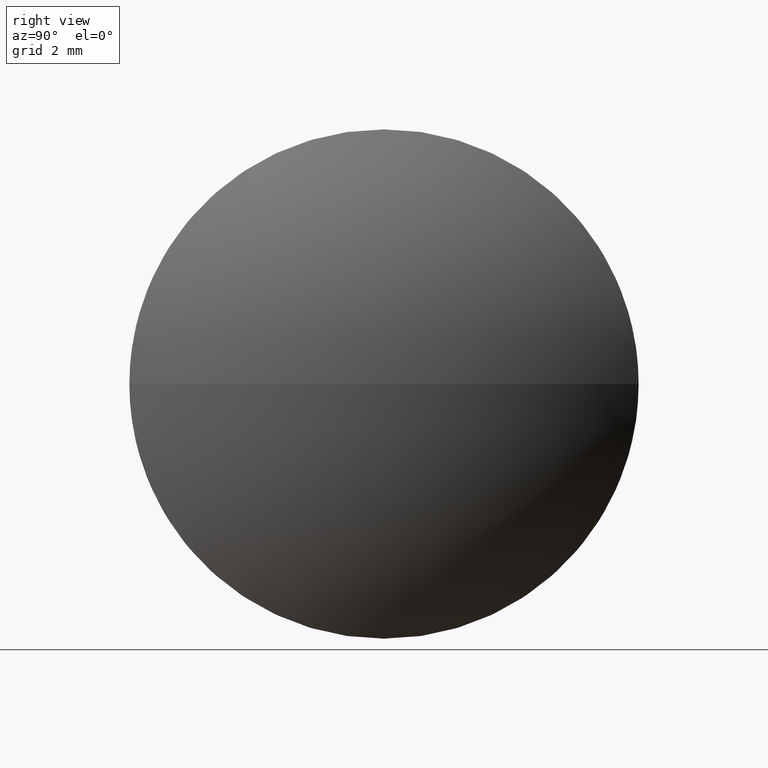
[diagram: clean part render]
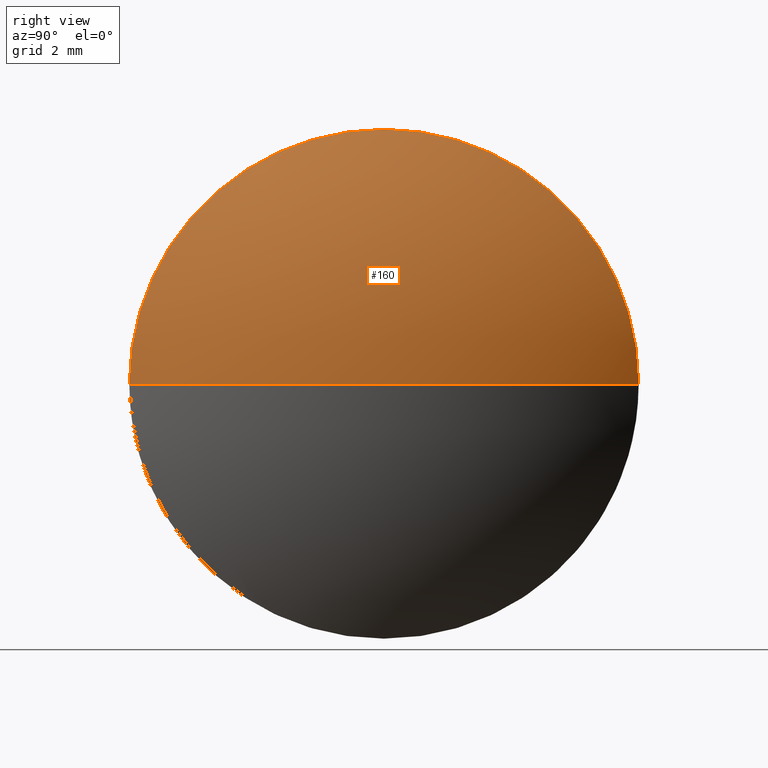
[diagram: same view with one face highlighted and labeled with its STEP entity id]
A machine part, right view. The second image highlights one B-rep face of the part: STEP entity #160.
In plain terms, the highlighted spherical surface has radius 10.5145 mm.
Its self-contained STEP definition (entity closure, byte-faithful):
#11 = EDGE_CURVE ( 'NONE', #169, #64, #174, .T. ) ;
#13 = DIRECTION ( 'NONE',  ( 0.0000000000000000000, 0.0000000000000000000, 1.000000000000000000 ) ) ;
#14 = CARTESIAN_POINT ( 'NONE',  ( 433.2311950534910400, 60.80641332261154000, 0.0000000000000000000 ) ) ;
#15 = DIRECTION ( 'NONE',  ( -0.0000000000000000000, 0.0000000000000000000, -1.000000000000000000 ) ) ;
#21 = AXIS2_PLACEMENT_3D ( 'NONE', #115, #166, #82 ) ;
#23 = ORIENTED_EDGE ( 'NONE', *, *, #137, .F. ) ;
#35 = EDGE_CURVE ( 'NONE', #139, #169, #66, .T. ) ;
#38 = CIRCLE ( 'NONE', #21, 10.51446808510642100 ) ;
#39 = CARTESIAN_POINT ( 'NONE',  ( 435.1111950534910300, 54.80641332261151900, 0.0000000000000000000 ) ) ;
#40 = VERTEX_POINT ( 'NONE', #39 ) ;
#47 = FACE_OUTER_BOUND ( 'NONE', #59, .T. ) ;
#50 = SPHERICAL_SURFACE ( 'NONE', #183, 10.51446808510642800 ) ;
#59 = EDGE_LOOP ( 'NONE', ( #23, #135, #181, #104 ) ) ;
#64 = VERTEX_POINT ( 'NONE', #14 ) ;
#66 = CIRCLE ( 'NONE', #158, 5.999999999999998200 ) ;
#77 = AXIS2_PLACEMENT_3D ( 'NONE', #126, #151, #96 ) ;
#82 = DIRECTION ( 'NONE',  ( 1.000000000000000000, 0.0000000000000000000, 0.0000000000000000000 ) ) ;
#83 = CARTESIAN_POINT ( 'NONE',  ( 433.2311950534910400, 54.80641332261154700, 0.0000000000000000000 ) ) ;
#85 = DIRECTION ( 'NONE',  ( 0.0000000000000000000, 1.000000000000000000, 0.0000000000000000000 ) ) ;
#96 = DIRECTION ( 'NONE',  ( 0.0000000000000000000, 0.0000000000000000000, 1.000000000000000000 ) ) ;
#97 = AXIS2_PLACEMENT_3D ( 'NONE', #103, #101, #168 ) ;
#101 = DIRECTION ( 'NONE',  ( 0.0000000000000000000, 1.224646799147353200E-016, -1.000000000000000000 ) ) ;
#103 = CARTESIAN_POINT ( 'NONE',  ( 424.5967269683846400, 54.80641332261151900, 0.0000000000000000000 ) ) ;
#104 = ORIENTED_EDGE ( 'NONE', *, *, #35, .F. ) ;
#106 = EDGE_CURVE ( 'NONE', #40, #64, #38, .T. ) ;
#115 = CARTESIAN_POINT ( 'NONE',  ( 424.5967269683846400, 54.80641332261151900, 0.0000000000000000000 ) ) ;
#121 = CARTESIAN_POINT ( 'NONE',  ( 424.5967269683846400, 54.80641332261151900, 0.0000000000000000000 ) ) ;
#126 = CARTESIAN_POINT ( 'NONE',  ( 433.2311950534910400, 54.80641332261154700, 0.0000000000000000000 ) ) ;
#129 = CARTESIAN_POINT ( 'NONE',  ( 433.2311950534910400, 54.80641332261154700, 5.999999999999998200 ) ) ;
#131 = CARTESIAN_POINT ( 'NONE',  ( 433.2311950534910400, 48.80641332261152600, -7.347880794884107900E-016 ) ) ;
#135 = ORIENTED_EDGE ( 'NONE', *, *, #106, .T. ) ;
#137 = EDGE_CURVE ( 'NONE', #40, #139, #173, .T. ) ;
#139 = VERTEX_POINT ( 'NONE', #131 ) ;
#151 = DIRECTION ( 'NONE',  ( -1.000000000000000000, -0.0000000000000000000, -0.0000000000000000000 ) ) ;
#158 = AXIS2_PLACEMENT_3D ( 'NONE', #83, #184, #13 ) ;
#160 = ADVANCED_FACE ( 'NONE', ( #47 ), #50, .T. ) ;
#166 = DIRECTION ( 'NONE',  ( -0.0000000000000000000, 0.0000000000000000000, 1.000000000000000000 ) ) ;
#168 = DIRECTION ( 'NONE',  ( 0.0000000000000000000, 1.000000000000000000, 1.224646799147353900E-016 ) ) ;
#169 = VERTEX_POINT ( 'NONE', #129 ) ;
#173 = CIRCLE ( 'NONE', #97, 10.51446808510642100 ) ;
#174 = CIRCLE ( 'NONE', #77, 5.999999999999998200 ) ;
#181 = ORIENTED_EDGE ( 'NONE', *, *, #11, .F. ) ;
#183 = AXIS2_PLACEMENT_3D ( 'NONE', #121, #15, #85 ) ;
#184 = DIRECTION ( 'NONE',  ( -1.000000000000000000, -0.0000000000000000000, -0.0000000000000000000 ) ) ;